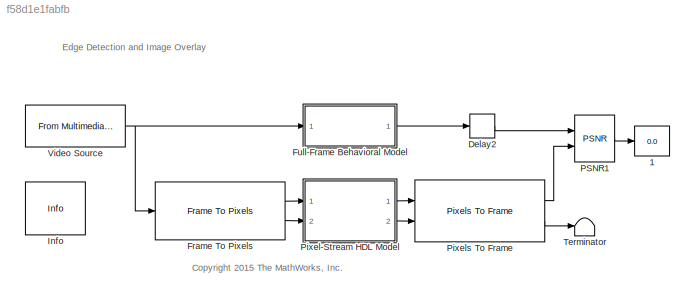
MODEL slx_f58d1e1fabfb
KIND model
CONFIG AbsTol = auto
CONFIG EnableMultiTasking = off
CONFIG FixedStep = auto
CONFIG MaxStep = auto
CONFIG MinStep = auto
CONFIG PreLoadFcn = thresholdValue = 7;\nalpha = 0.8;
CONFIG RelTol = 1e-3
CONFIG SampleTimeConstraint = Unconstrained
CONFIG Solver = FixedStepDiscrete
CONFIG SolverName = FixedStepDiscrete
CONFIG StartTime = 0.0
CONFIG StopTime = 402*324*10
BLOCK [Display]  1
  Decimation = 1
  Ports = [1]
BLOCK [Delay] Delay2
  DelayLength = 1
  InitialCondition = 0
  InputPortMap = u0
  Ports = [1, 1]
BLOCK [Reference] Frame To Pixels  REF=visionhdlio/Frame To Pixels
  Ports = [1, 2]
  SourceBlock = visionhdlio/Frame To Pixels
  SourceProductBaseCode = VT
  SourceProductName = Vision HDL Toolbox
  SourceType = Frame To Pixels
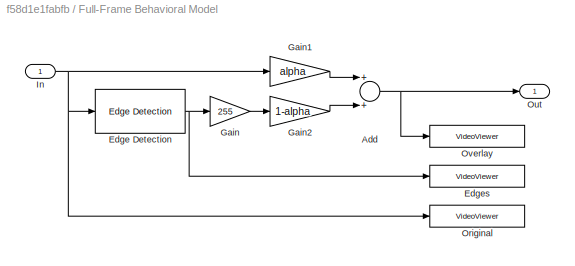
BLOCK [SubSystem] Full-Frame Behavioral Model
  Ports = [1, 1]
  RequestExecContextInheritance = off
  Variant = off
BLOCK [Sum] Full-Frame Behavioral Model/Add
  InputSameDT = off
  OutDataTypeStr = uint8
  Ports = [2, 1]
BLOCK [Reference] Full-Frame Behavioral Model/Edge Detection  REF=visionanalysis/Edge Detection
  Ports = [1, 1]
  SourceBlock = visionanalysis/Edge Detection
  SourceProductBaseCode = VP
  SourceProductName = Computer Vision System Toolbox
  SourceType = Edge Detection
BLOCK [VideoViewer] Full-Frame Behavioral Model/Edges
  FigPos = [378 395 386 288]
  Ports = [1]
  ScopeSpecificationString = vipscopes.VideoViewerScopeCfg('CurrentConfiguration', extmgr.ConfigurationSet(extmgr.Configuration('Core','General UI',true),extmgr.Configuration('Core','Source UI',true),extmgr.Configuration('Sources','WiredSimulink',true),extmgr.Configuration('Visuals','Video',true,'AxesProperties',struct('Color',[1 1 1],'XColor',[0.15 0.15 0.15],'YColor',[0.15 0.15 0.15],'ZColor',[0.15 0.15 0.15],'XGrid','off',...<+633ch>
  colormapValue = gray(256)
BLOCK [Gain] Full-Frame Behavioral Model/Gain
  Gain = 255
  OutDataTypeStr = uint8
  ParamDataTypeStr = Inherit: Inherit via internal rule
  SaturateOnIntegerOverflow = off
BLOCK [Gain] Full-Frame Behavioral Model/Gain1
  Gain = alpha
  OutDataTypeStr = uint8
  ParamDataTypeStr = Inherit: Inherit via internal rule
  SaturateOnIntegerOverflow = off
BLOCK [Gain] Full-Frame Behavioral Model/Gain2
  Gain = 1-alpha
  OutDataTypeStr = uint8
  ParamDataTypeStr = Inherit: Inherit via internal rule
  SaturateOnIntegerOverflow = off
BLOCK [Inport] Full-Frame Behavioral Model/In
  IconDisplay = Port number
BLOCK [VideoViewer] Full-Frame Behavioral Model/Original
  FigPos = [42 394 362 284]
  Ports = [1]
  ScopeSpecificationString = vipscopes.VideoViewerScopeCfg('CurrentConfiguration', extmgr.ConfigurationSet(extmgr.Configuration('Core','General UI',true),extmgr.Configuration('Core','Source UI',true),extmgr.Configuration('Sources','WiredSimulink',true),extmgr.Configuration('Visuals','Video',true,'AxesProperties',struct('Color',[1 1 1],'XColor',[0.15 0.15 0.15],'YColor',[0.15 0.15 0.15],'ZColor',[0.15 0.15 0.15],'XGrid','off',...<+632ch>
  colormapValue = gray(256)
BLOCK [Outport] Full-Frame Behavioral Model/Out
  IconDisplay = Port number
BLOCK [VideoViewer] Full-Frame Behavioral Model/Overlay
  FigPos = [742 391 354 280]
  Ports = [1]
  ScopeSpecificationString = vipscopes.VideoViewerScopeCfg('CurrentConfiguration', extmgr.ConfigurationSet(extmgr.Configuration('Core','General UI',true),extmgr.Configuration('Core','Source UI',true),extmgr.Configuration('Sources','WiredSimulink',true),extmgr.Configuration('Visuals','Video',true,'AxesProperties',struct('Color',[1 1 1],'XColor',[0.15 0.15 0.15],'YColor',[0.15 0.15 0.15],'ZColor',[0.15 0.15 0.15],'XGrid','off',...<+633ch>
  colormapValue = gray(256)
BLOCK [Reference] Info  REF=hdlcodermisc/Info
  Ports = []
  SourceBlock = hdlcodermisc/Info
  SourceProductBaseCode = HD
  SourceProductName = HDL Coder
BLOCK [Reference] PSNR1  REF=visionstatistics/PSNR
  Ports = [2, 1]
  SourceBlock = visionstatistics/PSNR
  SourceProductBaseCode = VP
  SourceProductName = Computer Vision System Toolbox
  SourceType = PSNR
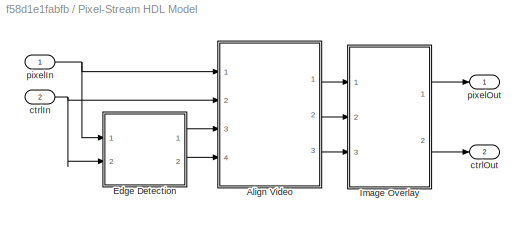
BLOCK [SubSystem] Pixel-Stream HDL Model
  Ports = [2, 2]
  RequestExecContextInheritance = off
  Variant = off
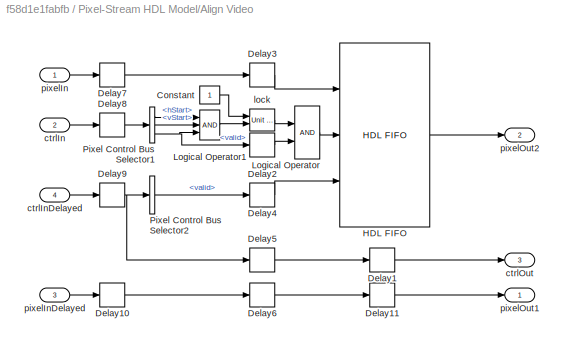
BLOCK [SubSystem] Pixel-Stream HDL Model/Align Video
  Ports = [4, 3]
  RequestExecContextInheritance = off
  Variant = off
BLOCK [Constant] Pixel-Stream HDL Model/Align Video/Constant
  OutDataTypeStr = boolean
  SampleTime = 1
BLOCK [Delay] Pixel-Stream HDL Model/Align Video/Delay1
  DelayLength = 1
  InitialCondition = 0
  InputPortMap = u0
  Ports = [1, 1]
BLOCK [Delay] Pixel-Stream HDL Model/Align Video/Delay10
  DelayLength = 1
  InitialCondition = 0
  InputPortMap = u0
  Ports = [1, 1]
BLOCK [Delay] Pixel-Stream HDL Model/Align Video/Delay11
  DelayLength = 1
  InitialCondition = 0
  InputPortMap = u0
  Ports = [1, 1]
BLOCK [Delay] Pixel-Stream HDL Model/Align Video/Delay2
  DelayLength = 1
  InitialCondition = 0
  InputPortMap = u0
  Ports = [1, 1]
BLOCK [Delay] Pixel-Stream HDL Model/Align Video/Delay3
  DelayLength = 1
  InitialCondition = 0
  InputPortMap = u0
  Ports = [1, 1]
BLOCK [Delay] Pixel-Stream HDL Model/Align Video/Delay4
  DelayLength = 1
  InitialCondition = 0
  InputPortMap = u0
  Ports = [1, 1]
BLOCK [Delay] Pixel-Stream HDL Model/Align Video/Delay5
  DelayLength = 1
  InitialCondition = 0
  InputPortMap = u0
  Ports = [1, 1]
BLOCK [Delay] Pixel-Stream HDL Model/Align Video/Delay6
  DelayLength = 1
  InitialCondition = 0
  InputPortMap = u0
  Ports = [1, 1]
BLOCK [Delay] Pixel-Stream HDL Model/Align Video/Delay7
  DelayLength = 1
  InitialCondition = 0
  InputPortMap = u0
  Ports = [1, 1]
BLOCK [Delay] Pixel-Stream HDL Model/Align Video/Delay8
  DelayLength = 1
  InitialCondition = 0
  InputPortMap = u0
  Ports = [1, 1]
BLOCK [Delay] Pixel-Stream HDL Model/Align Video/Delay9
  DelayLength = 1
  InitialCondition = 0
  InputPortMap = u0
  Ports = [1, 1]
BLOCK [Reference] Pixel-Stream HDL Model/Align Video/HDL FIFO  REF=hdlsllib/HDL RAMs/HDL FIFO
  Ports = [3, 1]
  SourceBlock = hdlsllib/HDL RAMs/HDL FIFO
  SourceProductBaseCode = HD
  SourceProductName = HDL Coder
  SourceType = HDL_FIFO
BLOCK [Logic] Pixel-Stream HDL Model/Align Video/Logical Operator
  AllPortsSameDT = off
  OutDataTypeStr = boolean
  Ports = [2, 1]
BLOCK [Logic] Pixel-Stream HDL Model/Align Video/Logical Operator1
  AllPortsSameDT = off
  Inputs = 3
  OutDataTypeStr = boolean
  Ports = [3, 1]
BLOCK [BusSelector] Pixel-Stream HDL Model/Align Video/Pixel Control Bus Selector1
  OutputAsBus = off
  OutputSignals = hStart,vStart,valid
  Ports = [1, 3]
BLOCK [BusSelector] Pixel-Stream HDL Model/Align Video/Pixel Control Bus Selector2
  OutputAsBus = off
  OutputSignals = valid
  Ports = [1, 1]
BLOCK [Inport] Pixel-Stream HDL Model/Align Video/ctrlIn
  IconDisplay = Port number
  Port = 2
BLOCK [Inport] Pixel-Stream HDL Model/Align Video/ctrlInDelayed
  IconDisplay = Port number
  Port = 4
BLOCK [Outport] Pixel-Stream HDL Model/Align Video/ctrlOut
  IconDisplay = Port number
  Port = 3
BLOCK [Reference] Pixel-Stream HDL Model/Align Video/lock  REF=simulink_need_slupdate/Unit Delay
Enabled
  Ports = [2, 1]
  SourceBlock = simulink_need_slupdate/Unit Delay\nEnabled
  SourceProductBaseCode = SL
  SourceProductName = Simulink
  SourceType = Unit Delay Enabled
BLOCK [Inport] Pixel-Stream HDL Model/Align Video/pixelIn
  IconDisplay = Port number
BLOCK [Inport] Pixel-Stream HDL Model/Align Video/pixelInDelayed
  IconDisplay = Port number
  Port = 3
BLOCK [Outport] Pixel-Stream HDL Model/Align Video/pixelOut1
  IconDisplay = Port number
BLOCK [Outport] Pixel-Stream HDL Model/Align Video/pixelOut2
  IconDisplay = Port number
  Port = 2
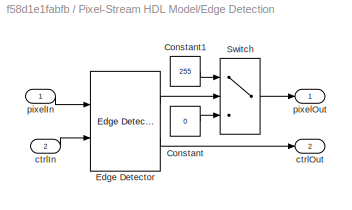
BLOCK [SubSystem] Pixel-Stream HDL Model/Edge Detection
  Ports = [2, 2]
  RequestExecContextInheritance = off
  Variant = off
BLOCK [Constant] Pixel-Stream HDL Model/Edge Detection/Constant
  OutDataTypeStr = uint8
  SampleTime = 1
  Value = 0
BLOCK [Constant] Pixel-Stream HDL Model/Edge Detection/Constant1
  OutDataTypeStr = uint8
  SampleTime = 1
  Value = 255
BLOCK [Reference] Pixel-Stream HDL Model/Edge Detection/Edge Detector  REF=visionhdlanalysis/Edge Detector
  Ports = [2, 2]
  SourceBlock = visionhdlanalysis/Edge Detector
  SourceProductBaseCode = VT
  SourceProductName = Vision HDL Toolbox
  SourceType = Edge Detector
BLOCK [Switch] Pixel-Stream HDL Model/Edge Detection/Switch
  Criteria = u2 ~= 0
  InputSameDT = off
  SaturateOnIntegerOverflow = off
BLOCK [Inport] Pixel-Stream HDL Model/Edge Detection/ctrlIn
  IconDisplay = Port number
  Port = 2
BLOCK [Outport] Pixel-Stream HDL Model/Edge Detection/ctrlOut
  IconDisplay = Port number
  Port = 2
BLOCK [Inport] Pixel-Stream HDL Model/Edge Detection/pixelIn
  IconDisplay = Port number
BLOCK [Outport] Pixel-Stream HDL Model/Edge Detection/pixelOut
  IconDisplay = Port number
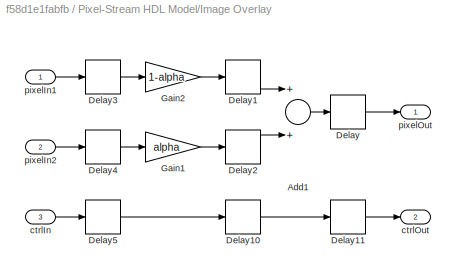
BLOCK [SubSystem] Pixel-Stream HDL Model/Image Overlay
  Ports = [3, 2]
  RequestExecContextInheritance = off
  Variant = off
BLOCK [Sum] Pixel-Stream HDL Model/Image Overlay/Add1
  InputSameDT = off
  OutDataTypeStr = uint8
  Ports = [2, 1]
BLOCK [Delay] Pixel-Stream HDL Model/Image Overlay/Delay
  DelayLength = 1
  InitialCondition = 0
  InputPortMap = u0
  Ports = [1, 1]
BLOCK [Delay] Pixel-Stream HDL Model/Image Overlay/Delay1
  InitialCondition = 0
  InputPortMap = u0
  Ports = [1, 1]
BLOCK [Delay] Pixel-Stream HDL Model/Image Overlay/Delay10
  InitialCondition = 0
  InputPortMap = u0
  Ports = [1, 1]
BLOCK [Delay] Pixel-Stream HDL Model/Image Overlay/Delay11
  DelayLength = 1
  InitialCondition = 0
  InputPortMap = u0
  Ports = [1, 1]
BLOCK [Delay] Pixel-Stream HDL Model/Image Overlay/Delay2
  InitialCondition = 0
  InputPortMap = u0
  Ports = [1, 1]
BLOCK [Delay] Pixel-Stream HDL Model/Image Overlay/Delay3
  InitialCondition = 0
  InputPortMap = u0
  Ports = [1, 1]
BLOCK [Delay] Pixel-Stream HDL Model/Image Overlay/Delay4
  InitialCondition = 0
  InputPortMap = u0
  Ports = [1, 1]
BLOCK [Delay] Pixel-Stream HDL Model/Image Overlay/Delay5
  InitialCondition = 0
  InputPortMap = u0
  Ports = [1, 1]
BLOCK [Gain] Pixel-Stream HDL Model/Image Overlay/Gain1
  Gain = alpha
  OutDataTypeStr = uint8
  ParamDataTypeStr = Inherit: Inherit via internal rule
  SaturateOnIntegerOverflow = off
BLOCK [Gain] Pixel-Stream HDL Model/Image Overlay/Gain2
  Gain = 1-alpha
  OutDataTypeStr = uint8
  ParamDataTypeStr = Inherit: Inherit via internal rule
  SaturateOnIntegerOverflow = off
BLOCK [Inport] Pixel-Stream HDL Model/Image Overlay/ctrlIn
  IconDisplay = Port number
  Port = 3
BLOCK [Outport] Pixel-Stream HDL Model/Image Overlay/ctrlOut
  IconDisplay = Port number
  Port = 2
BLOCK [Inport] Pixel-Stream HDL Model/Image Overlay/pixelIn1
  IconDisplay = Port number
BLOCK [Inport] Pixel-Stream HDL Model/Image Overlay/pixelIn2
  IconDisplay = Port number
  Port = 2
BLOCK [Outport] Pixel-Stream HDL Model/Image Overlay/pixelOut
  IconDisplay = Port number
BLOCK [Inport] Pixel-Stream HDL Model/ctrlIn
  IconDisplay = Port number
  Port = 2
BLOCK [Outport] Pixel-Stream HDL Model/ctrlOut
  IconDisplay = Port number
  Port = 2
BLOCK [Inport] Pixel-Stream HDL Model/pixelIn
  IconDisplay = Port number
BLOCK [Outport] Pixel-Stream HDL Model/pixelOut
  IconDisplay = Port number
BLOCK [Reference] Pixels To Frame  REF=visionhdlio/Pixels To Frame
  Ports = [2, 2]
  SourceBlock = visionhdlio/Pixels To Frame
  SourceProductBaseCode = VT
  SourceProductName = Vision HDL Toolbox
  SourceType = Pixels To Frame
BLOCK [Terminator] Terminator
BLOCK [Reference] Video Source  REF=dspvision/From Multimedia File
  Ports = [0, 1]
  SourceBlock = dspvision/From Multimedia File
  SourceProductBaseCode = VP
  SourceProductName = Computer Vision System Toolbox
  SourceType = From Multimedia File
ANNOTATION (root): <copyright redacted>
ANNOTATION (root): Edge Detection and Image Overlay
LINE Delay2:1 -> PSNR1:1
LINE Frame To Pixels:1 -> Pixel-Stream HDL Model:1
LINE Frame To Pixels:2 -> Pixel-Stream HDL Model:2
NET Full-Frame Behavioral Model/Add:1 -> Full-Frame Behavioral Model/Out:1, Full-Frame Behavioral Model/Overlay:1
NET Full-Frame Behavioral Model/Edge Detection:1 -> Full-Frame Behavioral Model/Edges:1, Full-Frame Behavioral Model/Gain:1
LINE Full-Frame Behavioral Model/Gain1:1 -> Full-Frame Behavioral Model/Add:1
LINE Full-Frame Behavioral Model/Gain2:1 -> Full-Frame Behavioral Model/Add:2
LINE Full-Frame Behavioral Model/Gain:1 -> Full-Frame Behavioral Model/Gain2:1
NET Full-Frame Behavioral Model/In:1 -> Full-Frame Behavioral Model/Edge Detection:1, Full-Frame Behavioral Model/Gain1:1, Full-Frame Behavioral Model/Original:1
LINE Full-Frame Behavioral Model:1 -> Delay2:1
LINE PSNR1:1 ->  1:1
LINE Pixel-Stream HDL Model/Align Video/Constant:1 -> Pixel-Stream HDL Model/Align Video/lock:1
LINE Pixel-Stream HDL Model/Align Video/Delay10:1 -> Pixel-Stream HDL Model/Align Video/Delay6:1
LINE Pixel-Stream HDL Model/Align Video/Delay11:1 -> Pixel-Stream HDL Model/Align Video/pixelOut1:1
LINE Pixel-Stream HDL Model/Align Video/Delay1:1 -> Pixel-Stream HDL Model/Align Video/ctrlOut:1
LINE Pixel-Stream HDL Model/Align Video/Delay2:1 -> Pixel-Stream HDL Model/Align Video/Logical Operator:2
LINE Pixel-Stream HDL Model/Align Video/Delay3:1 -> Pixel-Stream HDL Model/Align Video/HDL FIFO:1
LINE Pixel-Stream HDL Model/Align Video/Delay4:1 -> Pixel-Stream HDL Model/Align Video/HDL FIFO:3
LINE Pixel-Stream HDL Model/Align Video/Delay5:1 -> Pixel-Stream HDL Model/Align Video/Delay1:1
LINE Pixel-Stream HDL Model/Align Video/Delay6:1 -> Pixel-Stream HDL Model/Align Video/Delay11:1
LINE Pixel-Stream HDL Model/Align Video/Delay7:1 -> Pixel-Stream HDL Model/Align Video/Delay3:1
LINE Pixel-Stream HDL Model/Align Video/Delay8:1 -> Pixel-Stream HDL Model/Align Video/Pixel Control Bus Selector1:1
NET Pixel-Stream HDL Model/Align Video/Delay9:1 -> Pixel-Stream HDL Model/Align Video/Delay5:1, Pixel-Stream HDL Model/Align Video/Pixel Control Bus Selector2:1
LINE Pixel-Stream HDL Model/Align Video/HDL FIFO:1 -> Pixel-Stream HDL Model/Align Video/pixelOut2:1
LINE Pixel-Stream HDL Model/Align Video/Logical Operator1:1 -> Pixel-Stream HDL Model/Align Video/lock:2
LINE Pixel-Stream HDL Model/Align Video/Logical Operator:1 -> Pixel-Stream HDL Model/Align Video/HDL FIFO:2
LINE Pixel-Stream HDL Model/Align Video/Pixel Control Bus Selector1:1 -> Pixel-Stream HDL Model/Align Video/Logical Operator1:1
LINE Pixel-Stream HDL Model/Align Video/Pixel Control Bus Selector1:2 -> Pixel-Stream HDL Model/Align Video/Logical Operator1:2
NET Pixel-Stream HDL Model/Align Video/Pixel Control Bus Selector1:3 -> Pixel-Stream HDL Model/Align Video/Delay2:1, Pixel-Stream HDL Model/Align Video/Logical Operator1:3
LINE Pixel-Stream HDL Model/Align Video/Pixel Control Bus Selector2:1 -> Pixel-Stream HDL Model/Align Video/Delay4:1
LINE Pixel-Stream HDL Model/Align Video/ctrlIn:1 -> Pixel-Stream HDL Model/Align Video/Delay8:1
LINE Pixel-Stream HDL Model/Align Video/ctrlInDelayed:1 -> Pixel-Stream HDL Model/Align Video/Delay9:1
LINE Pixel-Stream HDL Model/Align Video/lock:1 -> Pixel-Stream HDL Model/Align Video/Logical Operator:1
LINE Pixel-Stream HDL Model/Align Video/pixelIn:1 -> Pixel-Stream HDL Model/Align Video/Delay7:1
LINE Pixel-Stream HDL Model/Align Video/pixelInDelayed:1 -> Pixel-Stream HDL Model/Align Video/Delay10:1
LINE Pixel-Stream HDL Model/Align Video:1 -> Pixel-Stream HDL Model/Image Overlay:1
LINE Pixel-Stream HDL Model/Align Video:2 -> Pixel-Stream HDL Model/Image Overlay:2
LINE Pixel-Stream HDL Model/Align Video:3 -> Pixel-Stream HDL Model/Image Overlay:3
LINE Pixel-Stream HDL Model/Edge Detection/Constant1:1 -> Pixel-Stream HDL Model/Edge Detection/Switch:1
LINE Pixel-Stream HDL Model/Edge Detection/Constant:1 -> Pixel-Stream HDL Model/Edge Detection/Switch:3
LINE Pixel-Stream HDL Model/Edge Detection/Edge Detector:1 -> Pixel-Stream HDL Model/Edge Detection/Switch:2
LINE Pixel-Stream HDL Model/Edge Detection/Edge Detector:2 -> Pixel-Stream HDL Model/Edge Detection/ctrlOut:1
LINE Pixel-Stream HDL Model/Edge Detection/Switch:1 -> Pixel-Stream HDL Model/Edge Detection/pixelOut:1
LINE Pixel-Stream HDL Model/Edge Detection/ctrlIn:1 -> Pixel-Stream HDL Model/Edge Detection/Edge Detector:2
LINE Pixel-Stream HDL Model/Edge Detection/pixelIn:1 -> Pixel-Stream HDL Model/Edge Detection/Edge Detector:1
LINE Pixel-Stream HDL Model/Edge Detection:1 -> Pixel-Stream HDL Model/Align Video:3
LINE Pixel-Stream HDL Model/Edge Detection:2 -> Pixel-Stream HDL Model/Align Video:4
LINE Pixel-Stream HDL Model/Image Overlay/Add1:1 -> Pixel-Stream HDL Model/Image Overlay/Delay:1
LINE Pixel-Stream HDL Model/Image Overlay/Delay10:1 -> Pixel-Stream HDL Model/Image Overlay/Delay11:1
LINE Pixel-Stream HDL Model/Image Overlay/Delay11:1 -> Pixel-Stream HDL Model/Image Overlay/ctrlOut:1
LINE Pixel-Stream HDL Model/Image Overlay/Delay1:1 -> Pixel-Stream HDL Model/Image Overlay/Add1:1
LINE Pixel-Stream HDL Model/Image Overlay/Delay2:1 -> Pixel-Stream HDL Model/Image Overlay/Add1:2
LINE Pixel-Stream HDL Model/Image Overlay/Delay3:1 -> Pixel-Stream HDL Model/Image Overlay/Gain2:1
LINE Pixel-Stream HDL Model/Image Overlay/Delay4:1 -> Pixel-Stream HDL Model/Image Overlay/Gain1:1
LINE Pixel-Stream HDL Model/Image Overlay/Delay5:1 -> Pixel-Stream HDL Model/Image Overlay/Delay10:1
LINE Pixel-Stream HDL Model/Image Overlay/Delay:1 -> Pixel-Stream HDL Model/Image Overlay/pixelOut:1
LINE Pixel-Stream HDL Model/Image Overlay/Gain1:1 -> Pixel-Stream HDL Model/Image Overlay/Delay2:1
LINE Pixel-Stream HDL Model/Image Overlay/Gain2:1 -> Pixel-Stream HDL Model/Image Overlay/Delay1:1
LINE Pixel-Stream HDL Model/Image Overlay/ctrlIn:1 -> Pixel-Stream HDL Model/Image Overlay/Delay5:1
LINE Pixel-Stream HDL Model/Image Overlay/pixelIn1:1 -> Pixel-Stream HDL Model/Image Overlay/Delay3:1
LINE Pixel-Stream HDL Model/Image Overlay/pixelIn2:1 -> Pixel-Stream HDL Model/Image Overlay/Delay4:1
LINE Pixel-Stream HDL Model/Image Overlay:1 -> Pixel-Stream HDL Model/pixelOut:1
LINE Pixel-Stream HDL Model/Image Overlay:2 -> Pixel-Stream HDL Model/ctrlOut:1
NET Pixel-Stream HDL Model/ctrlIn:1 -> Pixel-Stream HDL Model/Align Video:2, Pixel-Stream HDL Model/Edge Detection:2
NET Pixel-Stream HDL Model/pixelIn:1 -> Pixel-Stream HDL Model/Align Video:1, Pixel-Stream HDL Model/Edge Detection:1
LINE Pixel-Stream HDL Model:1 -> Pixels To Frame:1
LINE Pixel-Stream HDL Model:2 -> Pixels To Frame:2
LINE Pixels To Frame:1 -> PSNR1:2
LINE Pixels To Frame:2 -> Terminator:1
NET Video Source:1 -> Frame To Pixels:1, Full-Frame Behavioral Model:1
note: NET lines group one-source signal fan-out (src -> all destinations, sorted); 1:1 wires keep LINE
